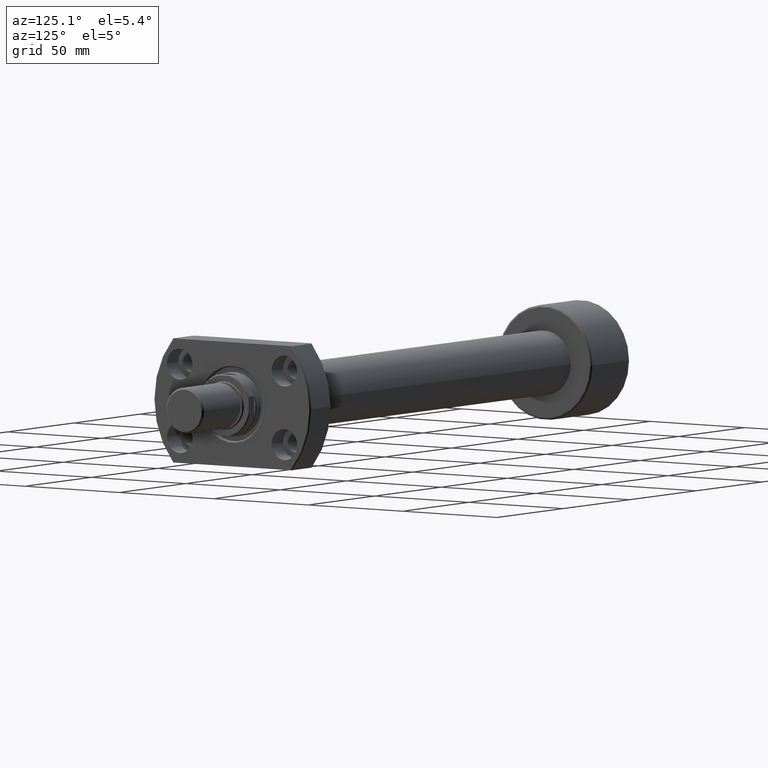
[diagram: clean part render]
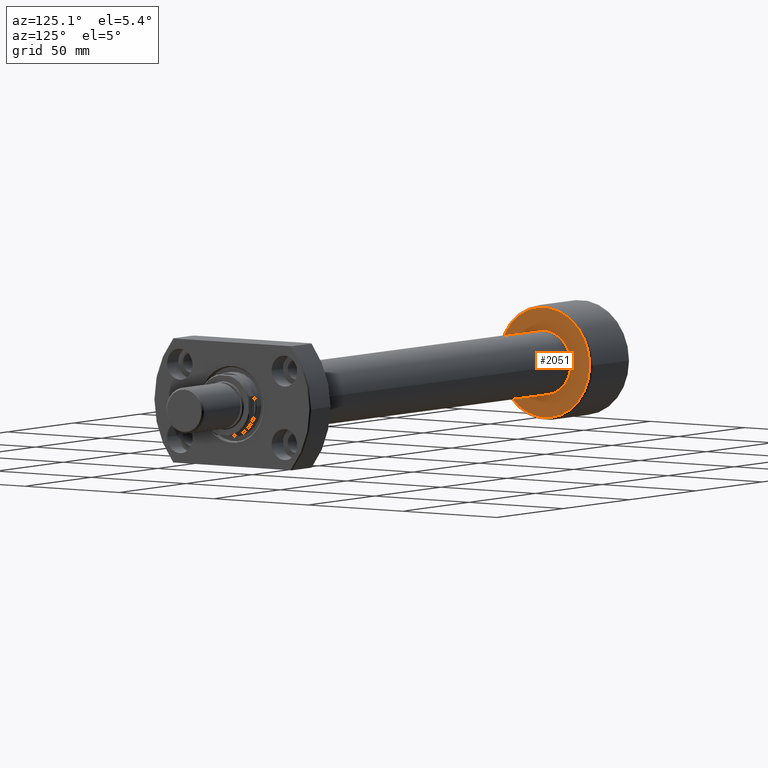
[diagram: same view with one face highlighted and labeled with its STEP entity id]
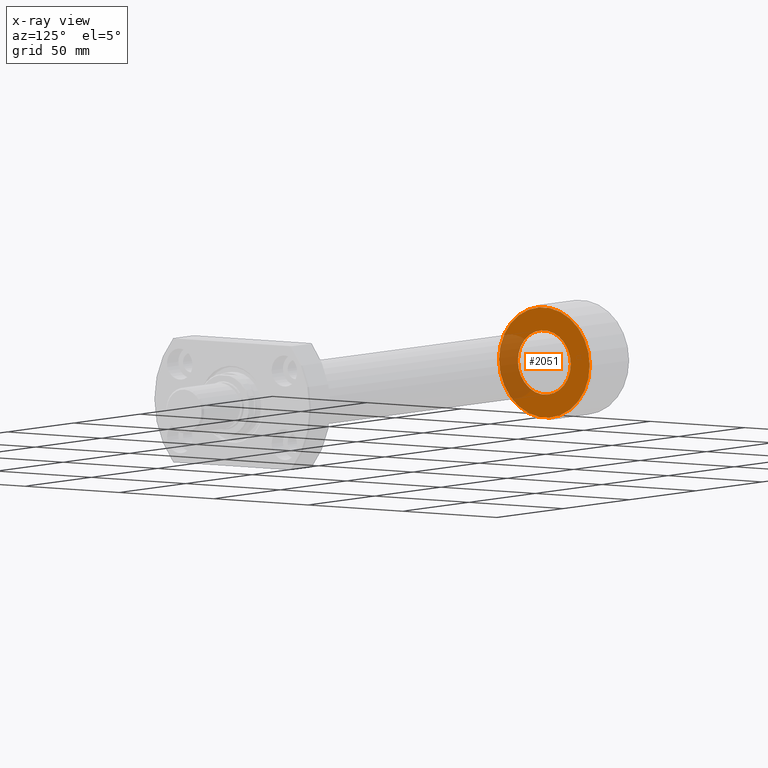
[diagram: x-ray of the same camera — body ghosted, the highlighted face saturated]
A machine part, auxiliary view. The second image highlights one B-rep face of the part: STEP entity #2051.
The next image is the same camera in x-ray: the body ghosted, the highlighted face saturated — about 24% of this face is hidden behind the body in this view.
In plain terms, the highlighted planar face has unit normal (-1, -0, 0).
Its self-contained STEP definition (entity closure, byte-faithful):
#98 = CIRCLE ( 'NONE', #2184, 24.00000000000000000 ) ;
#150 = DIRECTION ( 'NONE',  ( -1.000000000000000000, -1.069542322069065801E-17, -0.000000000000000000 ) ) ;
#173 = DIRECTION ( 'NONE',  ( 0.000000000000000000, -1.000000000000000000, 0.000000000000000000 ) ) ;
#194 = DIRECTION ( 'NONE',  ( 0.000000000000000000, -1.000000000000000000, 0.000000000000000000 ) ) ;
#271 = VERTEX_POINT ( 'NONE', #3197 ) ;
#423 = CARTESIAN_POINT ( 'NONE',  ( 29.70000000000000995, -13.99999999999999822, 0.000000000000000000 ) ) ;
#444 = VERTEX_POINT ( 'NONE', #2204 ) ;
#448 = ORIENTED_EDGE ( 'NONE', *, *, #2030, .T. ) ;
#664 = EDGE_LOOP ( 'NONE', ( #2165, #448 ) ) ;
#775 = ORIENTED_EDGE ( 'NONE', *, *, #3080, .F. ) ;
#833 = CARTESIAN_POINT ( 'NONE',  ( 29.70000000000000995, 3.176540696545126980E-16, 0.000000000000000000 ) ) ;
#964 = EDGE_CURVE ( 'NONE', #1224, #271, #2483, .T. ) ;
#1137 = EDGE_LOOP ( 'NONE', ( #1719, #775 ) ) ;
#1205 = CARTESIAN_POINT ( 'NONE',  ( 29.70000000000000995, 24.00000000000000000, 3.000384657911015469E-15 ) ) ;
#1224 = VERTEX_POINT ( 'NONE', #1746 ) ;
#1351 = AXIS2_PLACEMENT_3D ( 'NONE', #3263, #150, #194 ) ;
#1414 = EDGE_CURVE ( 'NONE', #444, #3287, #98, .T. ) ;
#1430 = DIRECTION ( 'NONE',  ( -1.000000000000000000, -1.069542322069065801E-17, -0.000000000000000000 ) ) ;
#1588 = CARTESIAN_POINT ( 'NONE',  ( 29.70000000000000995, 3.176540696545126980E-16, 0.000000000000000000 ) ) ;
#1719 = ORIENTED_EDGE ( 'NONE', *, *, #1414, .F. ) ;
#1746 = CARTESIAN_POINT ( 'NONE',  ( 29.70000000000000995, -13.99999999999999822, 0.000000000000000000 ) ) ;
#2030 = EDGE_CURVE ( 'NONE', #271, #1224, #2972, .T. ) ;
#2051 = ADVANCED_FACE ( 'NONE', ( #2161, #2141 ), #2199, .F. ) ;
#2116 = DIRECTION ( 'NONE',  ( 1.069542322069065801E-17, -1.000000000000000000, 0.000000000000000000 ) ) ;
#2141 = FACE_BOUND ( 'NONE', #664, .T. ) ;
#2161 = FACE_OUTER_BOUND ( 'NONE', #1137, .T. ) ;
#2165 = ORIENTED_EDGE ( 'NONE', *, *, #964, .T. ) ;
#2184 = AXIS2_PLACEMENT_3D ( 'NONE', #3051, #3642, #3360 ) ;
#2199 = PLANE ( 'NONE',  #2914 ) ;
#2204 = CARTESIAN_POINT ( 'NONE',  ( 29.70000000000000995, -24.00000000000000000, 0.000000000000000000 ) ) ;
#2469 = DIRECTION ( 'NONE',  ( -1.000000000000000000, -1.069542322069065801E-17, 0.000000000000000000 ) ) ;
#2483 = CIRCLE ( 'NONE', #3253, 13.99999999999999822 ) ;
#2547 = CIRCLE ( 'NONE', #2610, 24.00000000000000000 ) ;
#2610 = AXIS2_PLACEMENT_3D ( 'NONE', #833, #1430, #2819 ) ;
#2733 = DIRECTION ( 'NONE',  ( -1.000000000000000000, -1.069542322069065801E-17, -0.000000000000000000 ) ) ;
#2819 = DIRECTION ( 'NONE',  ( 0.000000000000000000, -1.000000000000000000, 0.000000000000000000 ) ) ;
#2914 = AXIS2_PLACEMENT_3D ( 'NONE', #423, #2469, #2116 ) ;
#2972 = CIRCLE ( 'NONE', #1351, 13.99999999999999822 ) ;
#3051 = CARTESIAN_POINT ( 'NONE',  ( 29.70000000000000995, 3.176540696545126980E-16, 0.000000000000000000 ) ) ;
#3080 = EDGE_CURVE ( 'NONE', #3287, #444, #2547, .T. ) ;
#3197 = CARTESIAN_POINT ( 'NONE',  ( 29.70000000000000995, 13.99999999999999822, 1.714505518806300554E-15 ) ) ;
#3253 = AXIS2_PLACEMENT_3D ( 'NONE', #1588, #2733, #173 ) ;
#3263 = CARTESIAN_POINT ( 'NONE',  ( 29.70000000000000995, 3.176540696545126980E-16, 0.000000000000000000 ) ) ;
#3287 = VERTEX_POINT ( 'NONE', #1205 ) ;
#3360 = DIRECTION ( 'NONE',  ( 0.000000000000000000, -1.000000000000000000, 0.000000000000000000 ) ) ;
#3642 = DIRECTION ( 'NONE',  ( -1.000000000000000000, -1.069542322069065801E-17, -0.000000000000000000 ) ) ;